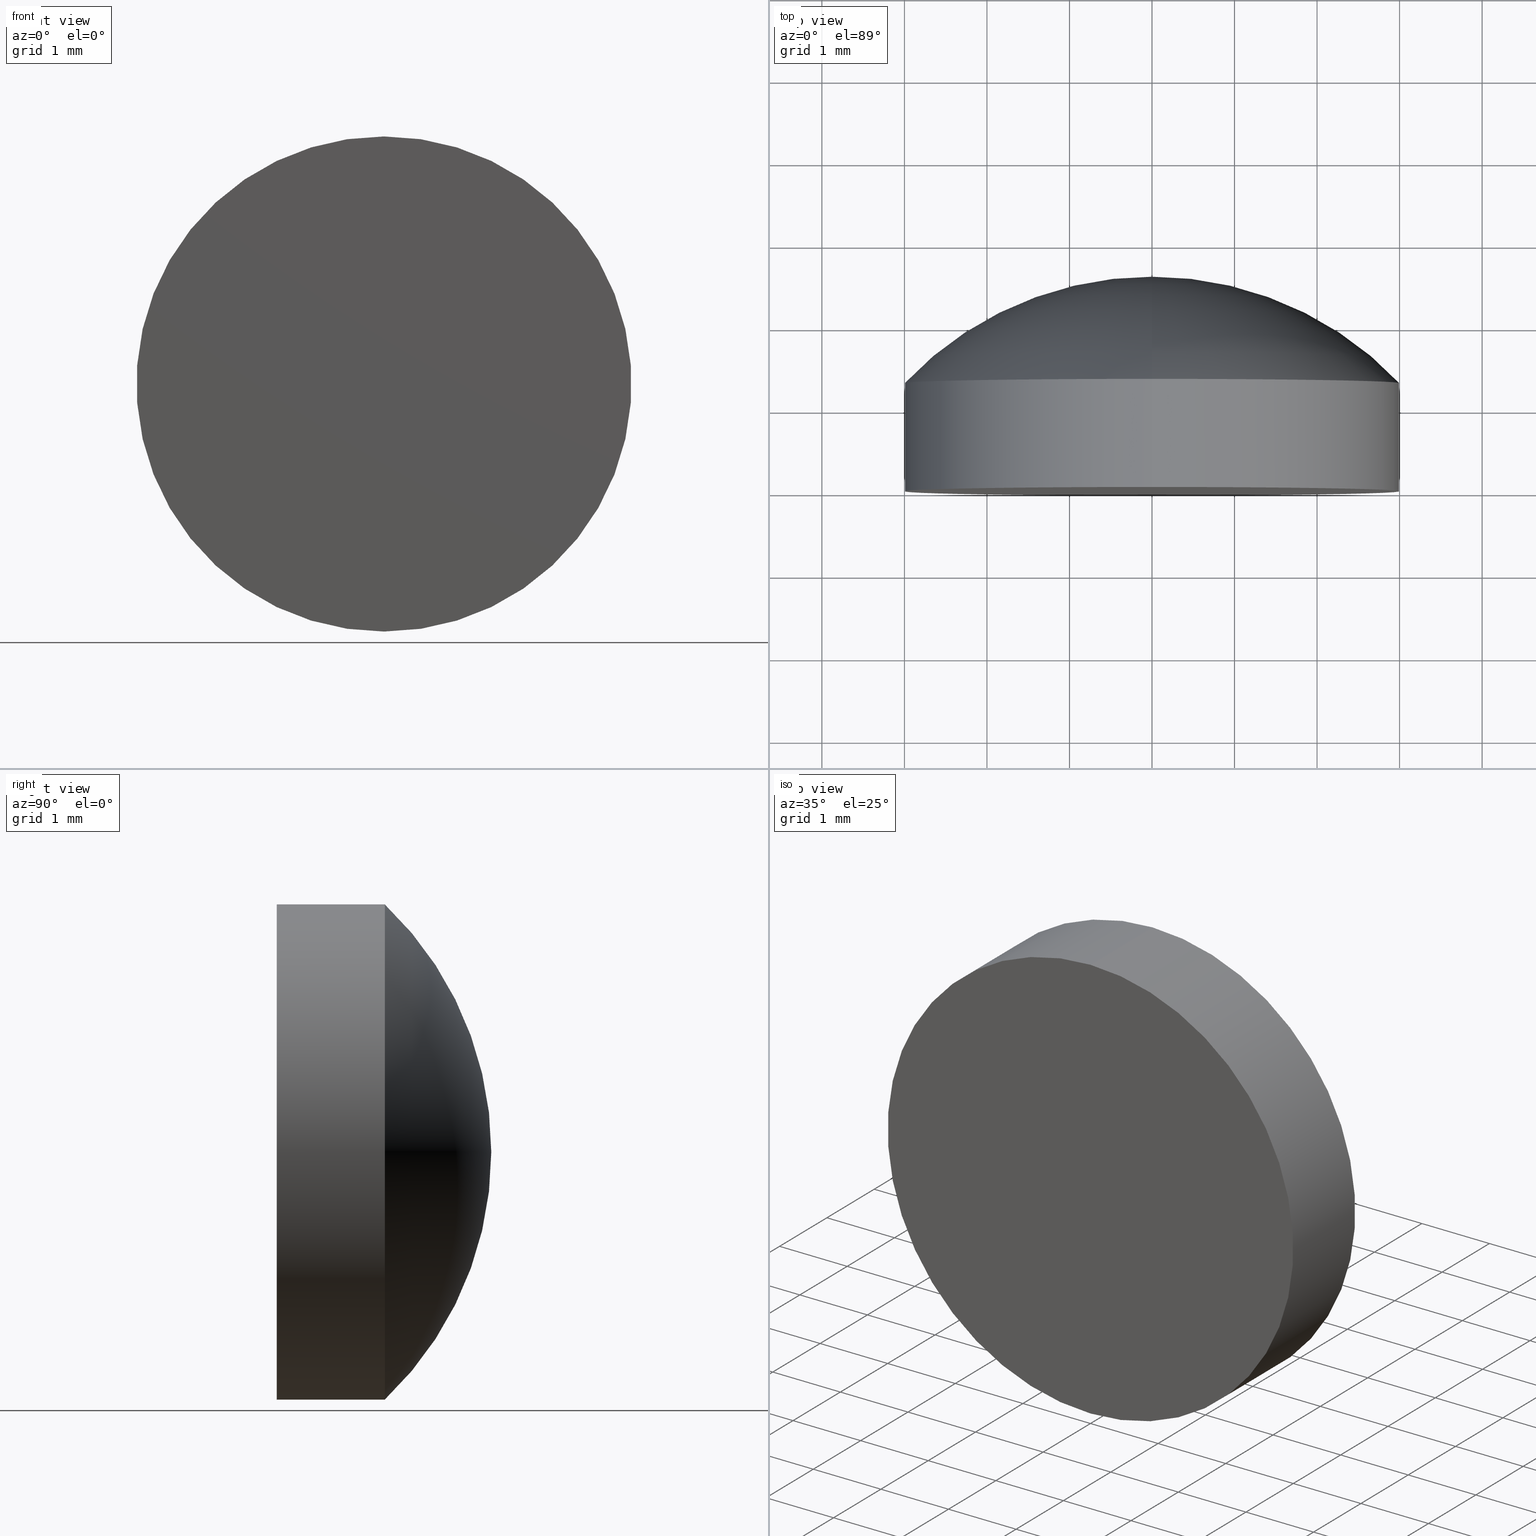
[diagram: canonical four-view strip — front | top / right | iso, engineering-drawing reading convention]
A machine part, canonical four-view strip (front | top / right | iso — engineering-drawing reading convention). The complete STEP part file that produces these views, byte-faithful:
ISO-10303-21;
HEADER;
FILE_DESCRIPTION (( 'STEP AP203' ),
    '1' );
FILE_NAME ('100582.STEP',
    '2024-05-10T01:24:35',
    ( '' ),
    ( '' ),
    'SwSTEP 2.0',
    'SolidWorks 2020',
    '' );
FILE_SCHEMA (( 'CONFIG_CONTROL_DESIGN' ));
ENDSEC;

DATA;
#1 = COORDINATED_UNIVERSAL_TIME_OFFSET ( 8, 0, .AHEAD. ) ;
#2 = CC_DESIGN_PERSON_AND_ORGANIZATION_ASSIGNMENT ( #77, #143, ( #173 ) ) ;
#3 = CALENDAR_DATE ( 2024, 10, 5 ) ;
#4 = CIRCLE ( 'NONE', #167, 3.000000000000000000 ) ;
#5 = ADVANCED_FACE ( 'NONE', ( #196 ), #176, .T. ) ;
#6 = APPROVAL_ROLE ( '' ) ;
#7 = ORIENTED_EDGE ( 'NONE', *, *, #141, .F. ) ;
#8 = DIRECTION ( 'NONE',  ( -0.000000000000000000, 1.000000000000000000, -0.000000000000000000 ) ) ;
#9 = FACE_OUTER_BOUND ( 'NONE', #127, .T. ) ;
#10 = CLOSED_SHELL ( 'NONE', ( #152, #81, #5, #169, #118 ) ) ;
#11 = EDGE_CURVE ( 'NONE', #22, #98, #126, .T. ) ;
#12 = LINE ( 'NONE', #198, #51 ) ;
#13 = CARTESIAN_POINT ( 'NONE',  ( 0.000000000000000000, 2.600000000000000089, 0.000000000000000000 ) ) ;
#14 = APPROVAL_PERSON_ORGANIZATION ( #90, #124, #187 ) ;
#15 = FACE_OUTER_BOUND ( 'NONE', #35, .T. ) ;
#16 = LINE ( 'NONE', #139, #66 ) ;
#17 = DIRECTION ( 'NONE',  ( -0.000000000000000000, 1.000000000000000000, -0.000000000000000000 ) ) ;
#18 =( LENGTH_UNIT ( ) NAMED_UNIT ( * ) SI_UNIT ( .MILLI., .METRE. ) );
#19 = SECURITY_CLASSIFICATION_LEVEL ( 'unclassified' ) ;
#20 = DIRECTION ( 'NONE',  ( 0.000000000000000000, 0.000000000000000000, 1.000000000000000000 ) ) ;
#21 = AXIS2_PLACEMENT_3D ( 'NONE', #149, #69, #171 ) ;
#22 = VERTEX_POINT ( 'NONE', #54 ) ;
#23 = PRODUCT_RELATED_PRODUCT_CATEGORY ( 'detail', '', ( #138 ) ) ;
#24 = CARTESIAN_POINT ( 'NONE',  ( 1.775871919268154040E-19, -1.529999745421605661, -0.001450109468709333271 ) ) ;
#25 = DIRECTION ( 'NONE',  ( 0.000000000000000000, 0.000000000000000000, 1.000000000000000000 ) ) ;
#26 = DIRECTION ( 'NONE',  ( -1.000000000000000000, 0.000000000000000000, 0.000000000000000000 ) ) ;
#27 = CARTESIAN_POINT ( 'NONE',  ( 3.673940397442059868E-16, 1.309999999999999609, -3.000000000000000000 ) ) ;
#28 = CARTESIAN_POINT ( 'NONE',  ( 0.000000000000000000, 2.600000000000000089, 0.000000000000000000 ) ) ;
#29 = PERSON_AND_ORGANIZATION_ROLE ( 'creator' ) ;
#30 = DIRECTION ( 'NONE',  ( 1.000000000000000000, 0.000000000000000000, 0.000000000000000000 ) ) ;
#31 = CC_DESIGN_PERSON_AND_ORGANIZATION_ASSIGNMENT ( #33, #93, ( #138 ) ) ;
#32 = PERSON_AND_ORGANIZATION ( #161, #168 ) ;
#33 = PERSON_AND_ORGANIZATION ( #161, #168 ) ;
#34 = ORIENTED_EDGE ( 'NONE', *, *, #113, .T. ) ;
#35 = EDGE_LOOP ( 'NONE', ( #50, #114, #68, #145 ) ) ;
#36 = AXIS2_PLACEMENT_3D ( 'NONE', #40, #8, #164 ) ;
#37 = AXIS2_PLACEMENT_3D ( 'NONE', #88, #26, #117 ) ;
#38 = DATE_AND_TIME ( #89, #87 ) ;
#39 = ORIENTED_EDGE ( 'NONE', *, *, #102, .T. ) ;
#40 = CARTESIAN_POINT ( 'NONE',  ( 0.000000000000000000, -1.529999745421605661, 0.000000000000000000 ) ) ;
#41 = CC_DESIGN_SECURITY_CLASSIFICATION ( #173, ( #99 ) ) ;
#42 = CARTESIAN_POINT ( 'NONE',  ( 0.000000000000000000, 2.600000000000000089, 0.000000000000000000 ) ) ;
#43 = CIRCLE ( 'NONE', #104, 3.000000000000000000 ) ;
#44 = EDGE_CURVE ( 'NONE', #129, #193, #195, .T. ) ;
#45 = APPLICATION_PROTOCOL_DEFINITION ( 'international standard', 'config_control_design', 1994, #194 ) ;
#46 = CC_DESIGN_PERSON_AND_ORGANIZATION_ASSIGNMENT ( #200, #29, ( #99 ) ) ;
#47 = AXIS2_PLACEMENT_3D ( 'NONE', #140, #125, #30 ) ;
#48 = CALENDAR_DATE ( 2024, 10, 5 ) ;
#49 = ORIENTED_EDGE ( 'NONE', *, *, #11, .T. ) ;
#50 = ORIENTED_EDGE ( 'NONE', *, *, #63, .F. ) ;
#51 = VECTOR ( 'NONE', #103, 1000.000000000000000 ) ;
#52 = FACE_OUTER_BOUND ( 'NONE', #95, .T. ) ;
#53 = DIRECTION ( 'NONE',  ( 0.000000000000000000, 0.000000000000000000, 1.000000000000000000 ) ) ;
#54 = CARTESIAN_POINT ( 'NONE',  ( 0.000000000000000000, -4.336808689942017736E-16, 3.000000000000000000 ) ) ;
#55 = CC_DESIGN_DATE_AND_TIME_ASSIGNMENT ( #38, #100, ( #173 ) ) ;
#56 = COORDINATED_UNIVERSAL_TIME_OFFSET ( 8, 0, .AHEAD. ) ;
#57 = AXIS2_PLACEMENT_3D ( 'NONE', #24, #105, #166 ) ;
#58 = CC_DESIGN_APPROVAL ( #124, ( #99 ) ) ;
#59 = DATE_TIME_ROLE ( 'creation_date' ) ;
#60 = COORDINATED_UNIVERSAL_TIME_OFFSET ( 8, 0, .AHEAD. ) ;
#61 = APPLICATION_PROTOCOL_DEFINITION ( 'international standard', 'config_control_design', 1994, #146 ) ;
#62 = TOROIDAL_SURFACE ( 'NONE', #178, 0.001450109468709333271, 4.129999999999999893 ) ;
#63 = EDGE_CURVE ( 'NONE', #98, #129, #12, .T. ) ;
#64 = APPROVAL_STATUS ( 'not_yet_approved' ) ;
#65 = ADVANCED_BREP_SHAPE_REPRESENTATION ( '100582', ( #84, #47 ), #183 ) ;
#66 = VECTOR ( 'NONE', #17, 1000.000000000000000 ) ;
#67 = UNCERTAINTY_MEASURE_WITH_UNIT (LENGTH_MEASURE( 1.000000000000000082E-05 ), #18, 'distance_accuracy_value', 'NONE');
#68 = ORIENTED_EDGE ( 'NONE', *, *, #174, .T. ) ;
#69 = DIRECTION ( 'NONE',  ( 0.000000000000000000, -1.000000000000000000, 0.000000000000000000 ) ) ;
#70 = DIRECTION ( 'NONE',  ( -0.000000000000000000, 1.000000000000000000, -0.000000000000000000 ) ) ;
#71 = CC_DESIGN_APPROVAL ( #94, ( #134 ) ) ;
#72 = CC_DESIGN_DATE_AND_TIME_ASSIGNMENT ( #122, #59, ( #134 ) ) ;
#73 = CYLINDRICAL_SURFACE ( 'NONE', #116, 3.000000000000000000 ) ;
#74 = APPROVAL_PERSON_ORGANIZATION ( #80, #148, #6 ) ;
#75 =( NAMED_UNIT ( * ) PLANE_ANGLE_UNIT ( ) SI_UNIT ( $, .RADIAN. ) );
#76 =( NAMED_UNIT ( * ) SI_UNIT ( $, .STERADIAN. ) SOLID_ANGLE_UNIT ( ) );
#77 = PERSON_AND_ORGANIZATION ( #161, #168 ) ;
#78 = CARTESIAN_POINT ( 'NONE',  ( 0.000000000000000000, 1.309999999999999609, 3.000000000000000000 ) ) ;
#79 = AXIS2_PLACEMENT_3D ( 'NONE', #180, #101, #25 ) ;
#80 = PERSON_AND_ORGANIZATION ( #161, #168 ) ;
#81 = ADVANCED_FACE ( 'NONE', ( #52 ), #62, .T. ) ;
#82 = EDGE_LOOP ( 'NONE', ( #49, #158, #157, #83 ) ) ;
#83 = ORIENTED_EDGE ( 'NONE', *, *, #174, .F. ) ;
#84 = MANIFOLD_SOLID_BREP ( '��ת1', #10 ) ;
#85 = VERTEX_POINT ( 'NONE', #28 ) ;
#86 = DIRECTION ( 'NONE',  ( 0.000000000000000000, 0.000000000000000000, 1.000000000000000000 ) ) ;
#87 = LOCAL_TIME ( 9, 24, 35.00000000000000000, #60 ) ;
#88 = CARTESIAN_POINT ( 'NONE',  ( 0.000000000000000000, -1.529999745421605661, 0.001450109468709333271 ) ) ;
#89 = CALENDAR_DATE ( 2024, 10, 5 ) ;
#90 = PERSON_AND_ORGANIZATION ( #161, #168 ) ;
#91 = PERSON_AND_ORGANIZATION ( #161, #168 ) ;
#92 = DIRECTION ( 'NONE',  ( -0.000000000000000000, 1.000000000000000000, -0.000000000000000000 ) ) ;
#93 = PERSON_AND_ORGANIZATION_ROLE ( 'design_owner' ) ;
#94 = APPROVAL ( #170, 'δָ��' ) ;
#95 = EDGE_LOOP ( 'NONE', ( #34, #159, #191 ) ) ;
#96 = CALENDAR_DATE ( 2024, 10, 5 ) ;
#97 = LOCAL_TIME ( 9, 24, 35.00000000000000000, #1 ) ;
#98 = VERTEX_POINT ( 'NONE', #120 ) ;
#99 = PRODUCT_DEFINITION_FORMATION_WITH_SPECIFIED_SOURCE ( '�κ�', '', #138, .NOT_KNOWN. ) ;
#100 = DATE_TIME_ROLE ( 'classification_date' ) ;
#101 = DIRECTION ( 'NONE',  ( -0.000000000000000000, 1.000000000000000000, -0.000000000000000000 ) ) ;
#102 = EDGE_CURVE ( 'NONE', #193, #85, #150, .T. ) ;
#103 = DIRECTION ( 'NONE',  ( -0.000000000000000000, 1.000000000000000000, -0.000000000000000000 ) ) ;
#104 = AXIS2_PLACEMENT_3D ( 'NONE', #154, #92, #20 ) ;
#105 = DIRECTION ( 'NONE',  ( 1.000000000000000000, 0.000000000000000000, 1.224646799147353207E-16 ) ) ;
#106 = LOCAL_TIME ( 9, 24, 35.00000000000000000, #130 ) ;
#107 = DIRECTION ( 'NONE',  ( 0.000000000000000000, 0.000000000000000000, 1.000000000000000000 ) ) ;
#108 = CYLINDRICAL_SURFACE ( 'NONE', #133, 3.000000000000000000 ) ;
#109 = AXIS2_PLACEMENT_3D ( 'NONE', #185, #135, #107 ) ;
#110 = CALENDAR_DATE ( 2024, 10, 5 ) ;
#111 = DATE_AND_TIME ( #3, #97 ) ;
#112 = PRODUCT_DEFINITION_SHAPE ( 'NONE', 'NONE',  #134 ) ;
#113 = EDGE_CURVE ( 'NONE', #193, #129, #4, .T. ) ;
#114 = ORIENTED_EDGE ( 'NONE', *, *, #192, .T. ) ;
#115 = EDGE_LOOP ( 'NONE', ( #7, #147, #39 ) ) ;
#116 = AXIS2_PLACEMENT_3D ( 'NONE', #42, #184, #137 ) ;
#117 = DIRECTION ( 'NONE',  ( 0.000000000000000000, 0.000000000000000000, 1.000000000000000000 ) ) ;
#118 = ADVANCED_FACE ( 'NONE', ( #15 ), #73, .T. ) ;
#119 = CARTESIAN_POINT ( 'NONE',  ( 0.000000000000000000, -1.529999745421605661, 0.000000000000000000 ) ) ;
#120 = CARTESIAN_POINT ( 'NONE',  ( 3.673940397442059868E-16, -4.336808689942017736E-16, -3.000000000000000000 ) ) ;
#121 = DIRECTION ( 'NONE',  ( -0.000000000000000000, 1.000000000000000000, -0.000000000000000000 ) ) ;
#122 = DATE_AND_TIME ( #110, #190 ) ;
#123 = PERSON_AND_ORGANIZATION ( #161, #168 ) ;
#124 = APPROVAL ( #153, 'δָ��' ) ;
#125 = DIRECTION ( 'NONE',  ( 0.000000000000000000, 0.000000000000000000, 1.000000000000000000 ) ) ;
#126 = CIRCLE ( 'NONE', #79, 3.000000000000000000 ) ;
#127 = EDGE_LOOP ( 'NONE', ( #175, #131 ) ) ;
#128 = DATE_AND_TIME ( #96, #106 ) ;
#129 = VERTEX_POINT ( 'NONE', #27 ) ;
#130 = COORDINATED_UNIVERSAL_TIME_OFFSET ( 8, 0, .AHEAD. ) ;
#131 = ORIENTED_EDGE ( 'NONE', *, *, #192, .F. ) ;
#132 = CC_DESIGN_APPROVAL ( #148, ( #173 ) ) ;
#133 = AXIS2_PLACEMENT_3D ( 'NONE', #13, #70, #86 ) ;
#134 = PRODUCT_DEFINITION ( 'δ֪', '', #99, #162 ) ;
#135 = DIRECTION ( 'NONE',  ( -0.000000000000000000, 1.000000000000000000, -0.000000000000000000 ) ) ;
#136 = PLANE ( 'NONE',  #21 ) ;
#137 = DIRECTION ( 'NONE',  ( 0.000000000000000000, 0.000000000000000000, 1.000000000000000000 ) ) ;
#138 = PRODUCT ( '100582', '100582', '', ( #172 ) ) ;
#139 = CARTESIAN_POINT ( 'NONE',  ( 0.000000000000000000, 2.600000000000000089, 3.000000000000000000 ) ) ;
#140 = CARTESIAN_POINT ( 'NONE',  ( 0.000000000000000000, 0.000000000000000000, 0.000000000000000000 ) ) ;
#141 = EDGE_CURVE ( 'NONE', #129, #85, #144, .T. ) ;
#142 = APPROVAL_ROLE ( '' ) ;
#143 = PERSON_AND_ORGANIZATION_ROLE ( 'classification_officer' ) ;
#144 = CIRCLE ( 'NONE', #57, 4.129999999999999893 ) ;
#145 = ORIENTED_EDGE ( 'NONE', *, *, #44, .F. ) ;
#146 = APPLICATION_CONTEXT ( 'configuration controlled 3d designs of mechanical parts and assemblies' ) ;
#147 = ORIENTED_EDGE ( 'NONE', *, *, #44, .T. ) ;
#148 = APPROVAL ( #64, 'δָ��' ) ;
#149 = CARTESIAN_POINT ( 'NONE',  ( 0.000000000000000000, -1.836970198721030181E-16, 0.000000000000000000 ) ) ;
#150 = CIRCLE ( 'NONE', #37, 4.129999999999999893 ) ;
#151 = FACE_OUTER_BOUND ( 'NONE', #82, .T. ) ;
#152 = ADVANCED_FACE ( 'NONE', ( #151 ), #108, .T. ) ;
#153 = APPROVAL_STATUS ( 'not_yet_approved' ) ;
#154 = CARTESIAN_POINT ( 'NONE',  ( 0.000000000000000000, -4.336808689942017736E-16, 0.000000000000000000 ) ) ;
#155 = APPROVAL_DATE_TIME ( #111, #124 ) ;
#156 = DATE_AND_TIME ( #48, #160 ) ;
#157 = ORIENTED_EDGE ( 'NONE', *, *, #113, .F. ) ;
#158 = ORIENTED_EDGE ( 'NONE', *, *, #63, .T. ) ;
#159 = ORIENTED_EDGE ( 'NONE', *, *, #141, .T. ) ;
#160 = LOCAL_TIME ( 9, 24, 35.00000000000000000, #201 ) ;
#161 = PERSON ( 'δָ��', 'δָ��', 'δָ��', ('δָ��'), ('δָ��'), ('δָ��') ) ;
#162 = DESIGN_CONTEXT ( 'detailed design', #146, 'design' ) ;
#163 = CARTESIAN_POINT ( 'NONE',  ( 0.000000000000000000, 1.309999999999999609, 0.000000000000000000 ) ) ;
#164 = DIRECTION ( 'NONE',  ( 0.000000000000000000, 0.000000000000000000, 1.000000000000000000 ) ) ;
#165 = DIRECTION ( 'NONE',  ( 0.000000000000000000, 0.000000000000000000, 1.000000000000000000 ) ) ;
#166 = DIRECTION ( 'NONE',  ( 1.224646799147353207E-16, 0.000000000000000000, -1.000000000000000000 ) ) ;
#167 = AXIS2_PLACEMENT_3D ( 'NONE', #163, #121, #165 ) ;
#168 = ORGANIZATION ( 'δָ��', 'δָ��', '' ) ;
#169 = ADVANCED_FACE ( 'NONE', ( #9 ), #136, .T. ) ;
#170 = APPROVAL_STATUS ( 'not_yet_approved' ) ;
#171 = DIRECTION ( 'NONE',  ( 0.000000000000000000, -0.000000000000000000, -1.000000000000000000 ) ) ;
#172 = MECHANICAL_CONTEXT ( 'NONE', #194, 'mechanical' ) ;
#173 = SECURITY_CLASSIFICATION ( '', '', #19 ) ;
#174 = EDGE_CURVE ( 'NONE', #22, #193, #16, .T. ) ;
#175 = ORIENTED_EDGE ( 'NONE', *, *, #11, .F. ) ;
#176 = TOROIDAL_SURFACE ( 'NONE', #36, 0.001450109468709333271, 4.129999999999999893 ) ;
#177 = APPROVAL_PERSON_ORGANIZATION ( #32, #94, #142 ) ;
#178 = AXIS2_PLACEMENT_3D ( 'NONE', #119, #181, #53 ) ;
#179 = SHAPE_DEFINITION_REPRESENTATION ( #112, #65 ) ;
#180 = CARTESIAN_POINT ( 'NONE',  ( 0.000000000000000000, -4.336808689942017736E-16, 0.000000000000000000 ) ) ;
#181 = DIRECTION ( 'NONE',  ( -0.000000000000000000, 1.000000000000000000, -0.000000000000000000 ) ) ;
#182 = APPROVAL_DATE_TIME ( #128, #148 ) ;
#183 =( GEOMETRIC_REPRESENTATION_CONTEXT ( 3 ) GLOBAL_UNCERTAINTY_ASSIGNED_CONTEXT ( ( #67 ) ) GLOBAL_UNIT_ASSIGNED_CONTEXT ( ( #18, #75, #76 ) ) REPRESENTATION_CONTEXT ( 'NONE', 'WORKASPACE' ) );
#184 = DIRECTION ( 'NONE',  ( -0.000000000000000000, 1.000000000000000000, -0.000000000000000000 ) ) ;
#185 = CARTESIAN_POINT ( 'NONE',  ( 0.000000000000000000, 1.309999999999999609, 0.000000000000000000 ) ) ;
#186 = CC_DESIGN_PERSON_AND_ORGANIZATION_ASSIGNMENT ( #91, #199, ( #134 ) ) ;
#187 = APPROVAL_ROLE ( '' ) ;
#188 = PERSON_AND_ORGANIZATION_ROLE ( 'design_supplier' ) ;
#189 = APPROVAL_DATE_TIME ( #156, #94 ) ;
#190 = LOCAL_TIME ( 9, 24, 35.00000000000000000, #56 ) ;
#191 = ORIENTED_EDGE ( 'NONE', *, *, #102, .F. ) ;
#192 = EDGE_CURVE ( 'NONE', #98, #22, #43, .T. ) ;
#193 = VERTEX_POINT ( 'NONE', #78 ) ;
#194 = APPLICATION_CONTEXT ( 'configuration controlled 3d designs of mechanical parts and assemblies' ) ;
#195 = CIRCLE ( 'NONE', #109, 3.000000000000000000 ) ;
#196 = FACE_OUTER_BOUND ( 'NONE', #115, .T. ) ;
#197 = CC_DESIGN_PERSON_AND_ORGANIZATION_ASSIGNMENT ( #123, #188, ( #99 ) ) ;
#198 = CARTESIAN_POINT ( 'NONE',  ( 3.673940397442059868E-16, 2.600000000000000089, -3.000000000000000000 ) ) ;
#199 = PERSON_AND_ORGANIZATION_ROLE ( 'creator' ) ;
#200 = PERSON_AND_ORGANIZATION ( #161, #168 ) ;
#201 = COORDINATED_UNIVERSAL_TIME_OFFSET ( 8, 0, .AHEAD. ) ;
ENDSEC;
END-ISO-10303-21;
